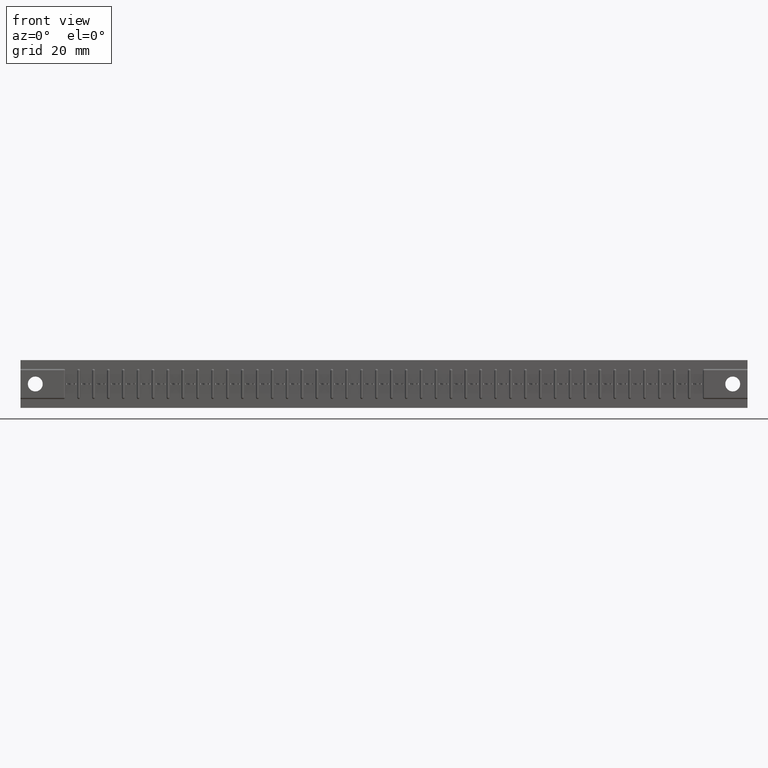
[diagram: clean part render]
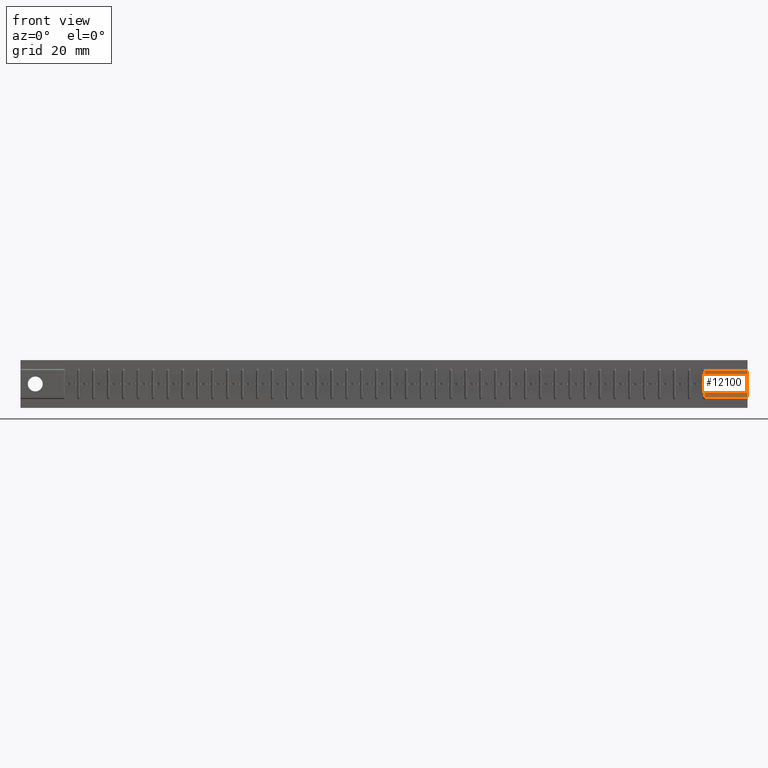
[diagram: same view with one face highlighted and labeled with its STEP entity id]
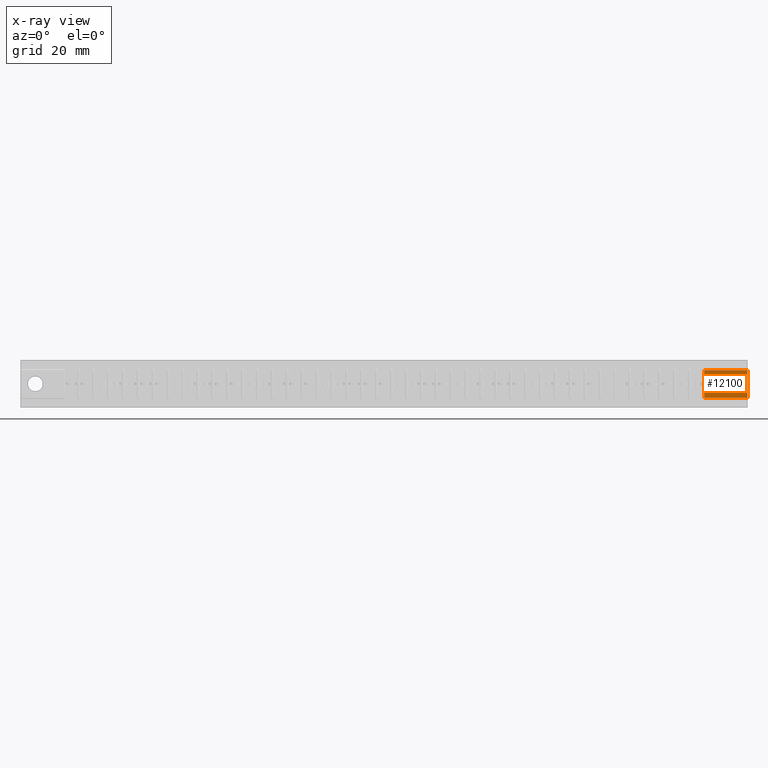
[diagram: x-ray of the same camera — body ghosted, the highlighted face saturated]
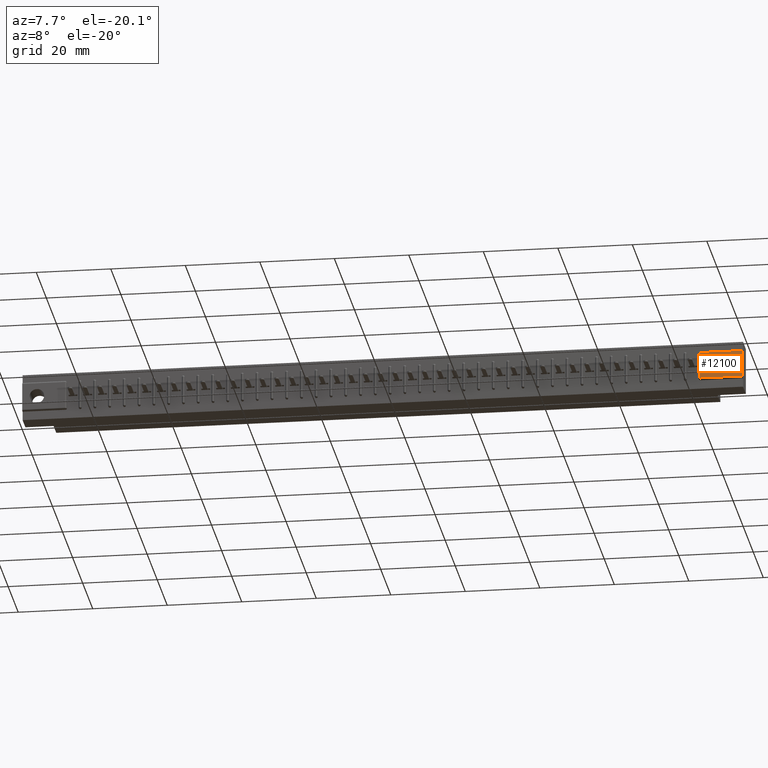
[diagram: same view with one face highlighted and labeled with its STEP entity id]
A machine part, front view. The second image highlights one B-rep face of the part: STEP entity #12100.
The next image is the same camera in x-ray: the body ghosted, the highlighted face saturated — about 0% of this face is hidden behind the body in this view.
A second angle (auxiliary view) of the same face is appended — the face is thin or edge-on in the first view.
In plain terms, the highlighted planar face has unit normal (0, -1, 0).
Its self-contained STEP definition (entity closure, byte-faithful):
#320 = CARTESIAN_POINT ( 'NONE',  ( 7.160999999999999588, 0.0000000000000000000, -0.1084999999999999437 ) ) ;
#551 = EDGE_LOOP ( 'NONE', ( #25705, #33850, #36870, #9847 ) ) ;
#705 = EDGE_CURVE ( 'NONE', #38034, #7943, #35153, .T. ) ;
#842 = CARTESIAN_POINT ( 'NONE',  ( 7.459000000000000519, 0.0000000000000000000, -0.2500000000000000000 ) ) ;
#1465 = ORIENTED_EDGE ( 'NONE', *, *, #21912, .F. ) ;
#1716 = CARTESIAN_POINT ( 'NONE',  ( 7.459000000000000519, 0.0000000000000000000, -0.1719999999999999585 ) ) ;
#1880 = DIRECTION ( 'NONE',  ( -1.000000000000000000, 0.0000000000000000000, 0.0000000000000000000 ) ) ;
#2806 = DIRECTION ( 'NONE',  ( 0.0000000000000000000, -0.0000000000000000000, -1.000000000000000000 ) ) ;
#3067 = EDGE_CURVE ( 'NONE', #9291, #7943, #5815, .T. ) ;
#3712 = DIRECTION ( 'NONE',  ( 0.0000000000000000000, 0.0000000000000000000, -1.000000000000000000 ) ) ;
#4034 = VERTEX_POINT ( 'NONE', #1716 ) ;
#4780 = EDGE_CURVE ( 'NONE', #29368, #9291, #12442, .T. ) ;
#5815 = LINE ( 'NONE', #12120, #36478 ) ;
#5967 = AXIS2_PLACEMENT_3D ( 'NONE', #842, #10769, #13255 ) ;
#5992 = CIRCLE ( 'NONE', #20971, 0.07800000000000002764 ) ;
#6278 = AXIS2_PLACEMENT_3D ( 'NONE', #18306, #30780, #2806 ) ;
#7586 = ORIENTED_EDGE ( 'NONE', *, *, #34409, .F. ) ;
#7943 = VERTEX_POINT ( 'NONE', #8782 ) ;
#8782 = CARTESIAN_POINT ( 'NONE',  ( 7.613999999999999879, 0.0000000000000000000, -0.3915000000000000702 ) ) ;
#8885 = FACE_BOUND ( 'NONE', #39947, .T. ) ;
#9291 = VERTEX_POINT ( 'NONE', #11634 ) ;
#9385 = CARTESIAN_POINT ( 'NONE',  ( 7.160999999999999588, 0.0000000000000000000, -0.3915000000000000702 ) ) ;
#9847 = ORIENTED_EDGE ( 'NONE', *, *, #705, .F. ) ;
#9940 = DIRECTION ( 'NONE',  ( 0.0000000000000000000, -1.000000000000000000, 0.0000000000000000000 ) ) ;
#10769 = DIRECTION ( 'NONE',  ( 0.0000000000000000000, -1.000000000000000000, 0.0000000000000000000 ) ) ;
#11634 = CARTESIAN_POINT ( 'NONE',  ( 7.160999999999999588, 0.0000000000000000000, -0.3915000000000000702 ) ) ;
#12100 = ADVANCED_FACE ( 'NONE', ( #8885, #21364 ), #33824, .T. ) ;
#12120 = CARTESIAN_POINT ( 'NONE',  ( 7.613999999999999879, 0.0000000000000000000, -0.3915000000000000702 ) ) ;
#12442 = LINE ( 'NONE', #9385, #37257 ) ;
#13204 = DIRECTION ( 'NONE',  ( 0.0000000000000000000, 0.0000000000000000000, 1.000000000000000000 ) ) ;
#13255 = DIRECTION ( 'NONE',  ( 0.0000000000000000000, 0.0000000000000000000, 1.000000000000000000 ) ) ;
#17044 = CIRCLE ( 'NONE', #5967, 0.07800000000000002764 ) ;
#18306 = CARTESIAN_POINT ( 'NONE',  ( 0.0000000000000000000, 0.0000000000000000000, -0.5000000000000000000 ) ) ;
#18635 = VECTOR ( 'NONE', #3712, 39.37007874015748143 ) ;
#19348 = CARTESIAN_POINT ( 'NONE',  ( 7.459000000000000519, 0.0000000000000000000, -0.3280000000000000138 ) ) ;
#20655 = LINE ( 'NONE', #29855, #35318 ) ;
#20664 = VERTEX_POINT ( 'NONE', #19348 ) ;
#20971 = AXIS2_PLACEMENT_3D ( 'NONE', #24900, #9940, #13204 ) ;
#21364 = FACE_OUTER_BOUND ( 'NONE', #551, .T. ) ;
#21912 = EDGE_CURVE ( 'NONE', #20664, #4034, #5992, .T. ) ;
#22062 = DIRECTION ( 'NONE',  ( -2.181987215386777655E-16, -0.0000000000000000000, -1.000000000000000000 ) ) ;
#22987 = EDGE_CURVE ( 'NONE', #38034, #29368, #20655, .T. ) ;
#24900 = CARTESIAN_POINT ( 'NONE',  ( 7.459000000000000519, 0.0000000000000000000, -0.2500000000000000000 ) ) ;
#25705 = ORIENTED_EDGE ( 'NONE', *, *, #22987, .T. ) ;
#26158 = CARTESIAN_POINT ( 'NONE',  ( 7.613999999999999879, 0.0000000000000000000, 0.0000000000000000000 ) ) ;
#29368 = VERTEX_POINT ( 'NONE', #320 ) ;
#29855 = CARTESIAN_POINT ( 'NONE',  ( 0.0000000000000000000, 0.0000000000000000000, -0.1084999999999999437 ) ) ;
#30780 = DIRECTION ( 'NONE',  ( 0.0000000000000000000, -1.000000000000000000, 0.0000000000000000000 ) ) ;
#32043 = CARTESIAN_POINT ( 'NONE',  ( 7.613999999999999879, 0.0000000000000000000, -0.1084999999999999437 ) ) ;
#33824 = PLANE ( 'NONE',  #6278 ) ;
#33850 = ORIENTED_EDGE ( 'NONE', *, *, #4780, .T. ) ;
#34027 = DIRECTION ( 'NONE',  ( 1.000000000000000000, -0.0000000000000000000, -0.0000000000000000000 ) ) ;
#34409 = EDGE_CURVE ( 'NONE', #4034, #20664, #17044, .T. ) ;
#35153 = LINE ( 'NONE', #26158, #18635 ) ;
#35318 = VECTOR ( 'NONE', #1880, 39.37007874015748143 ) ;
#36478 = VECTOR ( 'NONE', #34027, 39.37007874015748143 ) ;
#36870 = ORIENTED_EDGE ( 'NONE', *, *, #3067, .T. ) ;
#37257 = VECTOR ( 'NONE', #22062, 39.37007874015748143 ) ;
#38034 = VERTEX_POINT ( 'NONE', #32043 ) ;
#39947 = EDGE_LOOP ( 'NONE', ( #1465, #7586 ) ) ;